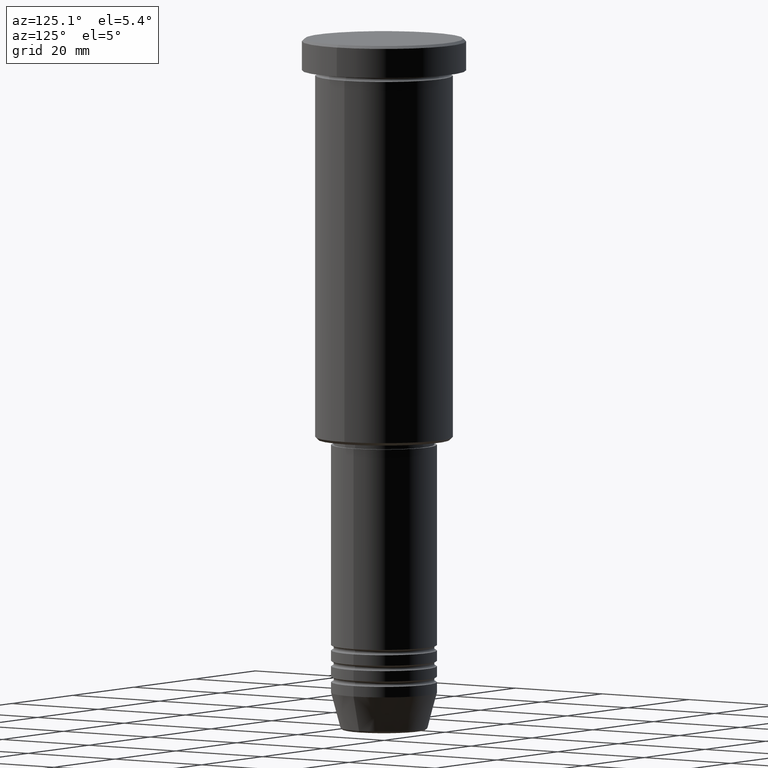
[diagram: clean part render]
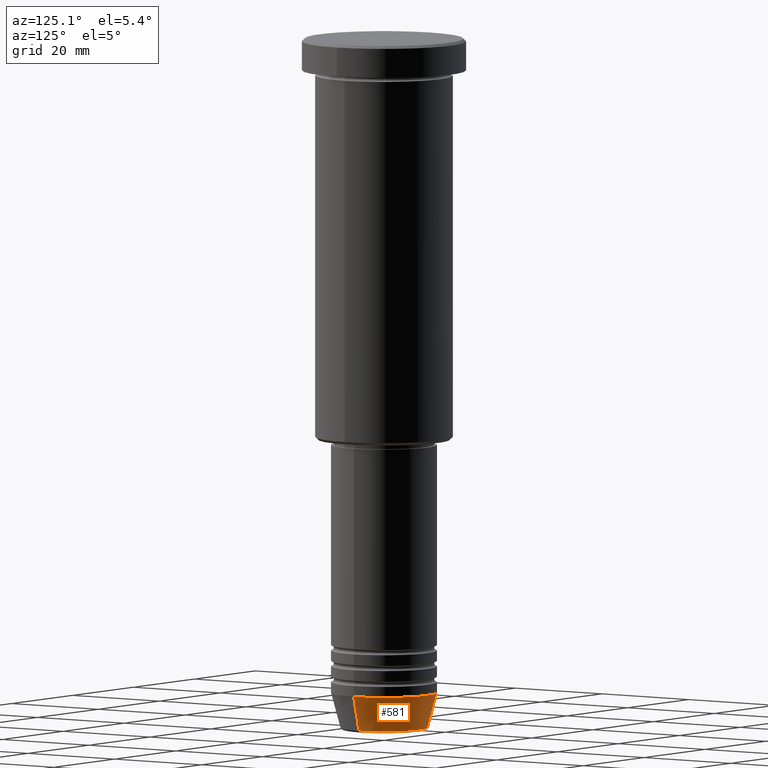
[diagram: same view with one face highlighted and labeled with its STEP entity id]
A machine part, auxiliary view. The second image highlights one B-rep face of the part: STEP entity #581.
In plain terms, the highlighted conical surface has half-angle 15 deg.
Its self-contained STEP definition (entity closure, byte-faithful):
#42 = CARTESIAN_POINT ( 'NONE',  ( -10.00000000000000000, 1.224646799147353256E-15, -124.0000000000000000 ) ) ;
#74 = DIRECTION ( 'NONE',  ( -0.000000000000000000, -0.000000000000000000, 1.000000000000000000 ) ) ;
#108 = EDGE_CURVE ( 'NONE', #325, #990, #152, .T. ) ;
#119 = CIRCLE ( 'NONE', #1174, 10.00000000000000000 ) ;
#152 = LINE ( 'NONE', #1163, #454 ) ;
#195 = DIRECTION ( 'NONE',  ( -0.000000000000000000, -0.000000000000000000, 1.000000000000000000 ) ) ;
#208 = CARTESIAN_POINT ( 'NONE',  ( 8.223655072137191269, 0.000000000000000000, -130.6294095225512422 ) ) ;
#215 = AXIS2_PLACEMENT_3D ( 'NONE', #1018, #195, #569 ) ;
#227 = ORIENTED_EDGE ( 'NONE', *, *, #728, .T. ) ;
#290 = CONICAL_SURFACE ( 'NONE', #215, 10.00000000000000000, 0.2617993877991500740 ) ;
#325 = VERTEX_POINT ( 'NONE', #208 ) ;
#336 = EDGE_LOOP ( 'NONE', ( #227, #1178, #1036, #424 ) ) ;
#339 = DIRECTION ( 'NONE',  ( 0.2588190451025213501, 0.000000000000000000, 0.9659258262890680902 ) ) ;
#357 = CARTESIAN_POINT ( 'NONE',  ( 0.000000000000000000, 0.000000000000000000, -130.6294095225512422 ) ) ;
#424 = ORIENTED_EDGE ( 'NONE', *, *, #108, .F. ) ;
#431 = DIRECTION ( 'NONE',  ( 1.000000000000000000, 0.000000000000000000, 0.000000000000000000 ) ) ;
#454 = VECTOR ( 'NONE', #339, 1000.000000000000000 ) ;
#470 = CARTESIAN_POINT ( 'NONE',  ( -10.00000000000000000, 1.224646799147353256E-15, -124.0000000000000000 ) ) ;
#510 = CARTESIAN_POINT ( 'NONE',  ( 0.000000000000000000, 0.000000000000000000, -124.0000000000000000 ) ) ;
#569 = DIRECTION ( 'NONE',  ( 1.000000000000000000, 0.000000000000000000, 0.000000000000000000 ) ) ;
#581 = ADVANCED_FACE ( 'NONE', ( #1126 ), #290, .T. ) ;
#589 = DIRECTION ( 'NONE',  ( -0.2588190451025213501, 3.169619151431772337E-17, 0.9659258262890680902 ) ) ;
#641 = CIRCLE ( 'NONE', #947, 8.223655072137191269 ) ;
#656 = EDGE_CURVE ( 'NONE', #1130, #825, #1048, .T. ) ;
#717 = DIRECTION ( 'NONE',  ( -0.000000000000000000, -0.000000000000000000, 1.000000000000000000 ) ) ;
#728 = EDGE_CURVE ( 'NONE', #325, #1130, #641, .T. ) ;
#824 = CARTESIAN_POINT ( 'NONE',  ( -8.223655072137191269, 1.115877042642912054E-15, -130.6294095225512422 ) ) ;
#825 = VERTEX_POINT ( 'NONE', #470 ) ;
#883 = DIRECTION ( 'NONE',  ( 1.000000000000000000, 0.000000000000000000, 0.000000000000000000 ) ) ;
#928 = VECTOR ( 'NONE', #589, 1000.000000000000000 ) ;
#947 = AXIS2_PLACEMENT_3D ( 'NONE', #357, #74, #431 ) ;
#990 = VERTEX_POINT ( 'NONE', #1069 ) ;
#1018 = CARTESIAN_POINT ( 'NONE',  ( 0.000000000000000000, 0.000000000000000000, -124.0000000000000000 ) ) ;
#1036 = ORIENTED_EDGE ( 'NONE', *, *, #1047, .F. ) ;
#1047 = EDGE_CURVE ( 'NONE', #990, #825, #119, .T. ) ;
#1048 = LINE ( 'NONE', #42, #928 ) ;
#1069 = CARTESIAN_POINT ( 'NONE',  ( 10.00000000000000000, 0.000000000000000000, -124.0000000000000000 ) ) ;
#1126 = FACE_OUTER_BOUND ( 'NONE', #336, .T. ) ;
#1130 = VERTEX_POINT ( 'NONE', #824 ) ;
#1163 = CARTESIAN_POINT ( 'NONE',  ( 10.00000000000000000, 0.000000000000000000, -124.0000000000000000 ) ) ;
#1174 = AXIS2_PLACEMENT_3D ( 'NONE', #510, #717, #883 ) ;
#1178 = ORIENTED_EDGE ( 'NONE', *, *, #656, .T. ) ;